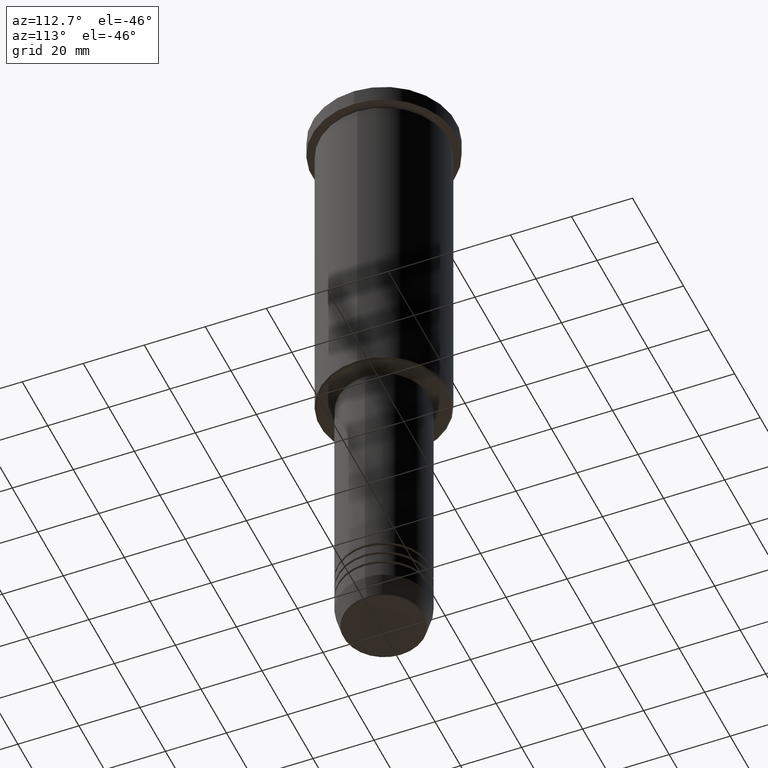
[diagram: clean part render]
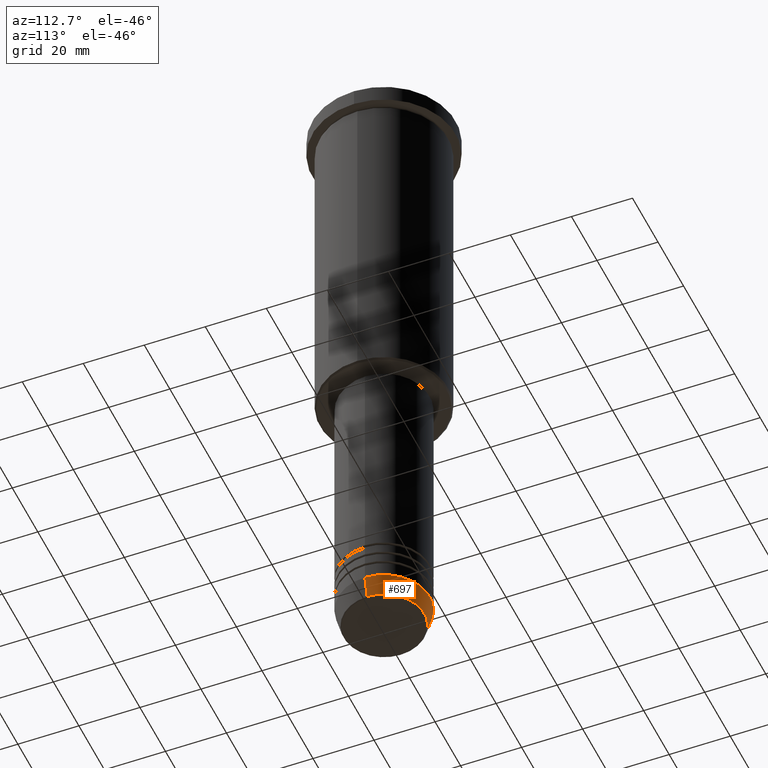
[diagram: same view with one face highlighted and labeled with its STEP entity id]
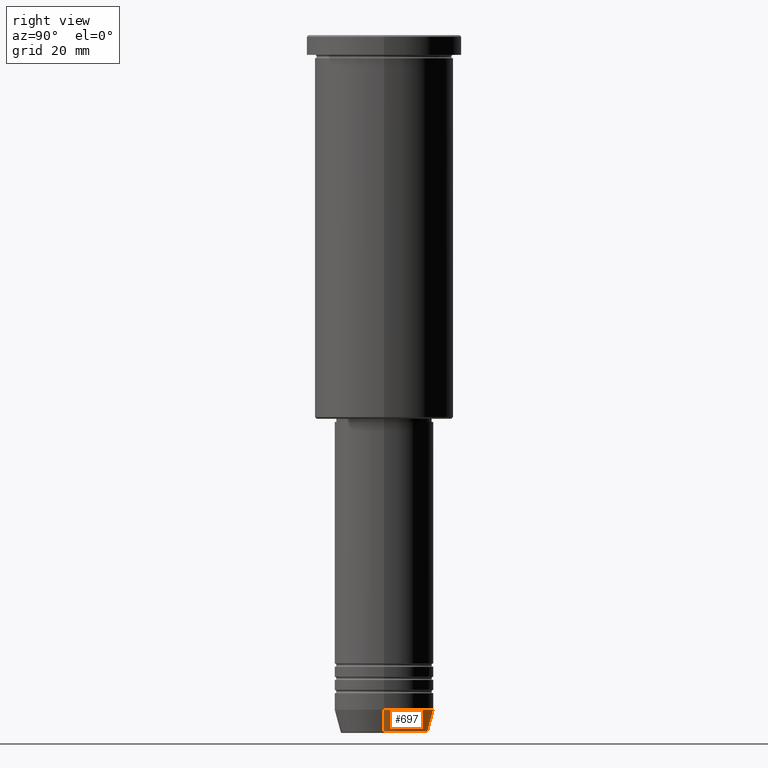
[diagram: same view with one face highlighted and labeled with its STEP entity id]
A machine part, auxiliary view. The second image highlights one B-rep face of the part: STEP entity #697.
A second angle (right view) of the same face is appended — the face is thin or edge-on in the first view.
In plain terms, the highlighted conical surface has half-angle 15 deg.
Its self-contained STEP definition (entity closure, byte-faithful):
#26 = DIRECTION ( 'NONE',  ( 1.000000000000000000, 0.000000000000000000, 0.000000000000000000 ) ) ;
#52 = ORIENTED_EDGE ( 'NONE', *, *, #963, .T. ) ;
#63 = CARTESIAN_POINT ( 'NONE',  ( -15.00000000000000000, 1.836970198721029589E-15, -204.0000000000000284 ) ) ;
#85 = VERTEX_POINT ( 'NONE', #806 ) ;
#93 = DIRECTION ( 'NONE',  ( 1.000000000000000000, 0.000000000000000000, 0.000000000000000000 ) ) ;
#124 = CARTESIAN_POINT ( 'NONE',  ( 0.000000000000000000, 0.000000000000000000, -204.0000000000000284 ) ) ;
#165 = AXIS2_PLACEMENT_3D ( 'NONE', #124, #312, #26 ) ;
#190 = VERTEX_POINT ( 'NONE', #1093 ) ;
#215 = ORIENTED_EDGE ( 'NONE', *, *, #413, .F. ) ;
#258 = CARTESIAN_POINT ( 'NONE',  ( 0.000000000000000000, 0.000000000000000000, -204.0000000000000284 ) ) ;
#296 = DIRECTION ( 'NONE',  ( 1.000000000000000000, 0.000000000000000000, 0.000000000000000000 ) ) ;
#312 = DIRECTION ( 'NONE',  ( -0.000000000000000000, -0.000000000000000000, 1.000000000000000000 ) ) ;
#353 = LINE ( 'NONE', #566, #458 ) ;
#378 = VECTOR ( 'NONE', #1073, 1000.000000000000000 ) ;
#408 = ORIENTED_EDGE ( 'NONE', *, *, #1068, .T. ) ;
#413 = EDGE_CURVE ( 'NONE', #85, #483, #550, .T. ) ;
#420 = CARTESIAN_POINT ( 'NONE',  ( -15.00000000000000000, 1.836970198721029589E-15, -204.0000000000000284 ) ) ;
#423 = VERTEX_POINT ( 'NONE', #495 ) ;
#458 = VECTOR ( 'NONE', #467, 1000.000000000000000 ) ;
#467 = DIRECTION ( 'NONE',  ( 0.2588190451025213501, 0.000000000000000000, 0.9659258262890680902 ) ) ;
#483 = VERTEX_POINT ( 'NONE', #420 ) ;
#495 = CARTESIAN_POINT ( 'NONE',  ( -13.22365507213719660, 1.728200442216588780E-15, -210.6294095225512706 ) ) ;
#550 = CIRCLE ( 'NONE', #165, 15.00000000000000000 ) ;
#566 = CARTESIAN_POINT ( 'NONE',  ( 15.00000000000000000, 0.000000000000000000, -204.0000000000000284 ) ) ;
#569 = EDGE_LOOP ( 'NONE', ( #52, #408, #215, #577 ) ) ;
#577 = ORIENTED_EDGE ( 'NONE', *, *, #1122, .F. ) ;
#648 = CONICAL_SURFACE ( 'NONE', #826, 15.00000000000000000, 0.2617993877991500740 ) ;
#697 = ADVANCED_FACE ( 'NONE', ( #1072 ), #648, .T. ) ;
#719 = LINE ( 'NONE', #63, #378 ) ;
#753 = DIRECTION ( 'NONE',  ( -0.000000000000000000, -0.000000000000000000, 1.000000000000000000 ) ) ;
#806 = CARTESIAN_POINT ( 'NONE',  ( 15.00000000000000000, 0.000000000000000000, -204.0000000000000284 ) ) ;
#826 = AXIS2_PLACEMENT_3D ( 'NONE', #258, #753, #296 ) ;
#864 = CIRCLE ( 'NONE', #1180, 13.22365507213719482 ) ;
#918 = CARTESIAN_POINT ( 'NONE',  ( 0.000000000000000000, 0.000000000000000000, -210.6294095225512706 ) ) ;
#963 = EDGE_CURVE ( 'NONE', #190, #423, #864, .T. ) ;
#1068 = EDGE_CURVE ( 'NONE', #423, #483, #719, .T. ) ;
#1072 = FACE_OUTER_BOUND ( 'NONE', #569, .T. ) ;
#1073 = DIRECTION ( 'NONE',  ( -0.2588190451025213501, 3.169619151431772337E-17, 0.9659258262890680902 ) ) ;
#1093 = CARTESIAN_POINT ( 'NONE',  ( 13.22365507213719482, 0.000000000000000000, -210.6294095225512706 ) ) ;
#1115 = DIRECTION ( 'NONE',  ( -0.000000000000000000, -0.000000000000000000, 1.000000000000000000 ) ) ;
#1122 = EDGE_CURVE ( 'NONE', #190, #85, #353, .T. ) ;
#1180 = AXIS2_PLACEMENT_3D ( 'NONE', #918, #1115, #93 ) ;